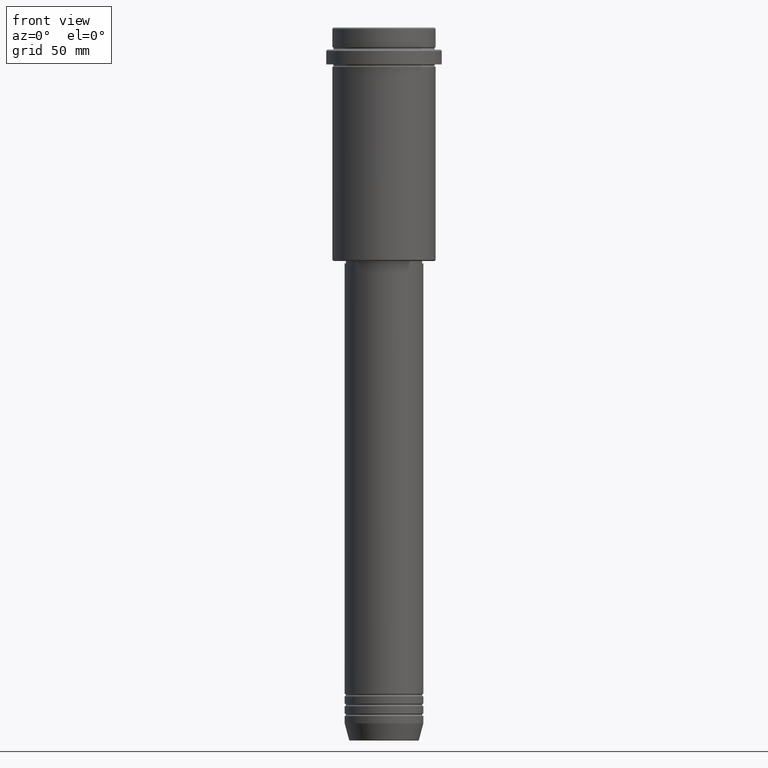
[diagram: clean part render]
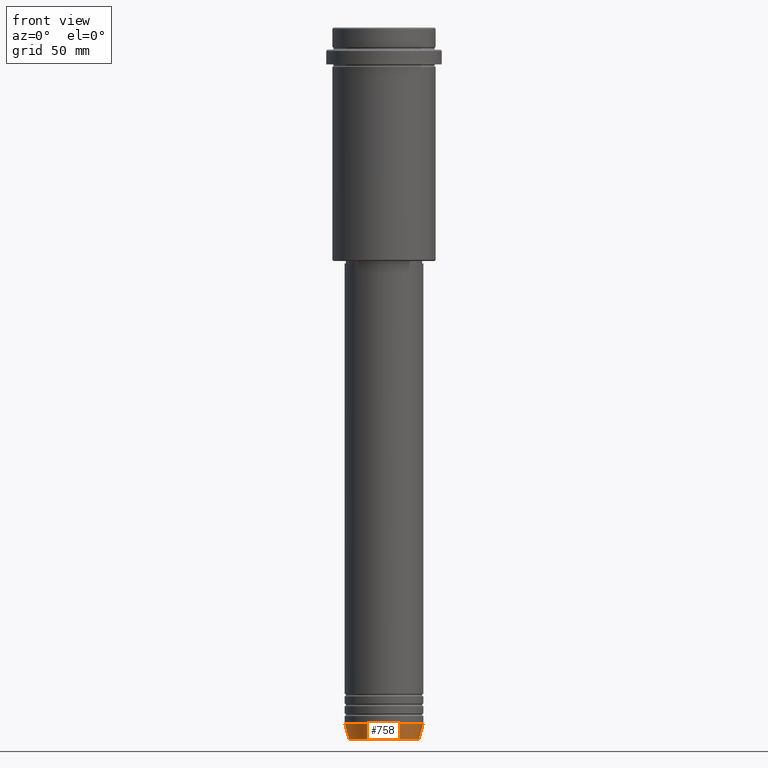
[diagram: same view with one face highlighted and labeled with its STEP entity id]
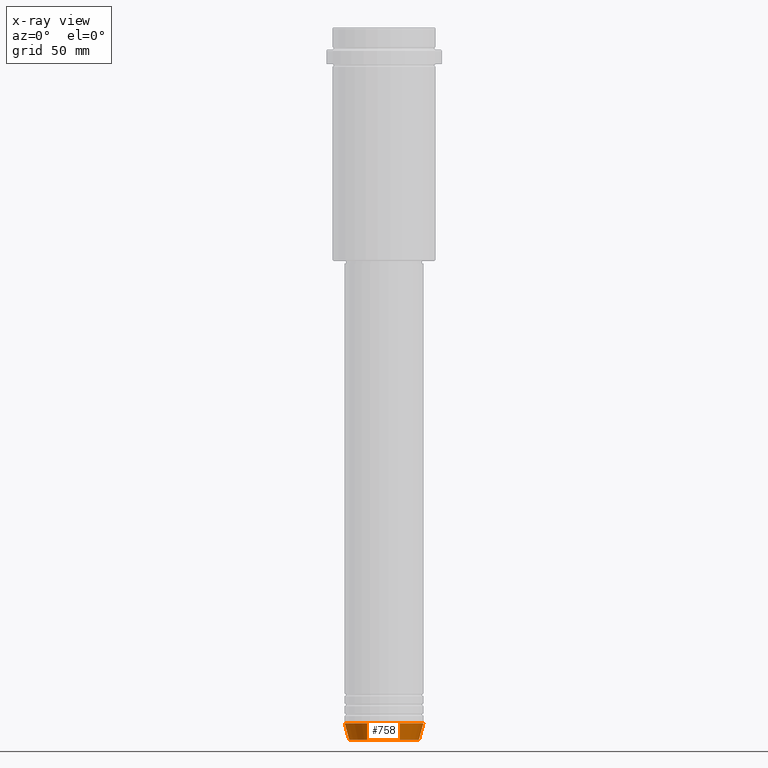
[diagram: x-ray of the same camera — body ghosted, the highlighted face saturated]
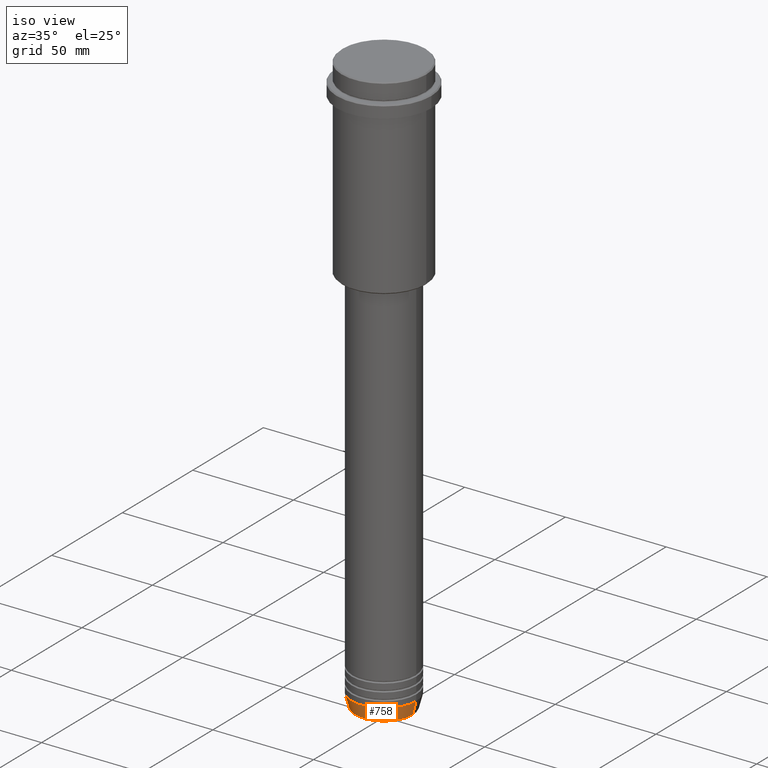
[diagram: same view with one face highlighted and labeled with its STEP entity id]
A machine part, front view. The second image highlights one B-rep face of the part: STEP entity #758.
The next image is the same camera in x-ray: the body ghosted, the highlighted face saturated — about 0% of this face is hidden behind the body in this view.
A second angle (iso view) of the same face is appended — the face is thin or edge-on in the first view.
In plain terms, the highlighted conical surface has half-angle 15 deg.
Its self-contained STEP definition (entity closure, byte-faithful):
#34 = DIRECTION ( 'NONE',  ( -0.000000000000000000, -0.000000000000000000, 1.000000000000000000 ) ) ;
#105 = DIRECTION ( 'NONE',  ( 1.000000000000000000, 0.000000000000000000, 0.000000000000000000 ) ) ;
#155 = CIRCLE ( 'NONE', #972, 14.22365507213718772 ) ;
#174 = CARTESIAN_POINT ( 'NONE',  ( 14.22365507213718772, 0.000000000000000000, -289.6294095225512706 ) ) ;
#279 = VECTOR ( 'NONE', #1320, 1000.000000000000000 ) ;
#315 = DIRECTION ( 'NONE',  ( -0.000000000000000000, -0.000000000000000000, 1.000000000000000000 ) ) ;
#317 = CARTESIAN_POINT ( 'NONE',  ( 16.00000000000000000, 0.000000000000000000, -283.0000000000000568 ) ) ;
#425 = EDGE_CURVE ( 'NONE', #588, #1143, #1037, .T. ) ;
#427 = ORIENTED_EDGE ( 'NONE', *, *, #1072, .T. ) ;
#445 = LINE ( 'NONE', #899, #279 ) ;
#446 = FACE_OUTER_BOUND ( 'NONE', #1144, .T. ) ;
#468 = DIRECTION ( 'NONE',  ( -0.000000000000000000, -0.000000000000000000, 1.000000000000000000 ) ) ;
#496 = DIRECTION ( 'NONE',  ( -0.2588190451025213501, 3.169619151431772337E-17, 0.9659258262890680902 ) ) ;
#575 = AXIS2_PLACEMENT_3D ( 'NONE', #683, #34, #105 ) ;
#588 = VERTEX_POINT ( 'NONE', #979 ) ;
#649 = AXIS2_PLACEMENT_3D ( 'NONE', #1327, #468, #1219 ) ;
#654 = VERTEX_POINT ( 'NONE', #317 ) ;
#683 = CARTESIAN_POINT ( 'NONE',  ( 0.000000000000000000, 0.000000000000000000, -283.0000000000000568 ) ) ;
#695 = CONICAL_SURFACE ( 'NONE', #575, 16.00000000000000000, 0.2617993877991500740 ) ;
#708 = CARTESIAN_POINT ( 'NONE',  ( -16.00000000000000000, 1.959434878635765131E-15, -283.0000000000000568 ) ) ;
#758 = ADVANCED_FACE ( 'NONE', ( #446 ), #695, .T. ) ;
#798 = EDGE_CURVE ( 'NONE', #1143, #654, #832, .T. ) ;
#832 = CIRCLE ( 'NONE', #649, 16.00000000000000000 ) ;
#865 = CARTESIAN_POINT ( 'NONE',  ( 0.000000000000000000, 0.000000000000000000, -289.6294095225512706 ) ) ;
#899 = CARTESIAN_POINT ( 'NONE',  ( 16.00000000000000000, 0.000000000000000000, -283.0000000000000568 ) ) ;
#928 = ORIENTED_EDGE ( 'NONE', *, *, #425, .F. ) ;
#937 = ORIENTED_EDGE ( 'NONE', *, *, #1142, .T. ) ;
#967 = DIRECTION ( 'NONE',  ( 1.000000000000000000, 0.000000000000000000, 0.000000000000000000 ) ) ;
#969 = VECTOR ( 'NONE', #496, 1000.000000000000000 ) ;
#972 = AXIS2_PLACEMENT_3D ( 'NONE', #865, #315, #967 ) ;
#979 = CARTESIAN_POINT ( 'NONE',  ( -14.22365507213718772, 1.850665122131323337E-15, -289.6294095225512706 ) ) ;
#1037 = LINE ( 'NONE', #708, #969 ) ;
#1071 = ORIENTED_EDGE ( 'NONE', *, *, #798, .F. ) ;
#1072 = EDGE_CURVE ( 'NONE', #588, #1411, #155, .T. ) ;
#1142 = EDGE_CURVE ( 'NONE', #1411, #654, #445, .T. ) ;
#1143 = VERTEX_POINT ( 'NONE', #1217 ) ;
#1144 = EDGE_LOOP ( 'NONE', ( #928, #427, #937, #1071 ) ) ;
#1217 = CARTESIAN_POINT ( 'NONE',  ( -16.00000000000000000, 1.959434878635765131E-15, -283.0000000000000568 ) ) ;
#1219 = DIRECTION ( 'NONE',  ( 1.000000000000000000, 0.000000000000000000, 0.000000000000000000 ) ) ;
#1320 = DIRECTION ( 'NONE',  ( 0.2588190451025213501, 0.000000000000000000, 0.9659258262890680902 ) ) ;
#1327 = CARTESIAN_POINT ( 'NONE',  ( 0.000000000000000000, 0.000000000000000000, -283.0000000000000568 ) ) ;
#1411 = VERTEX_POINT ( 'NONE', #174 ) ;